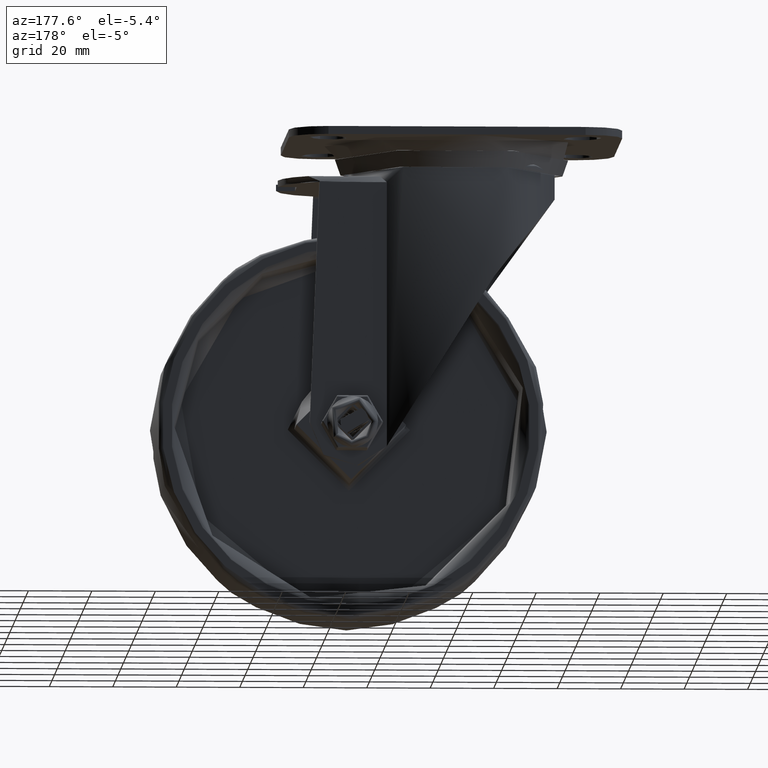
[diagram: clean part render]
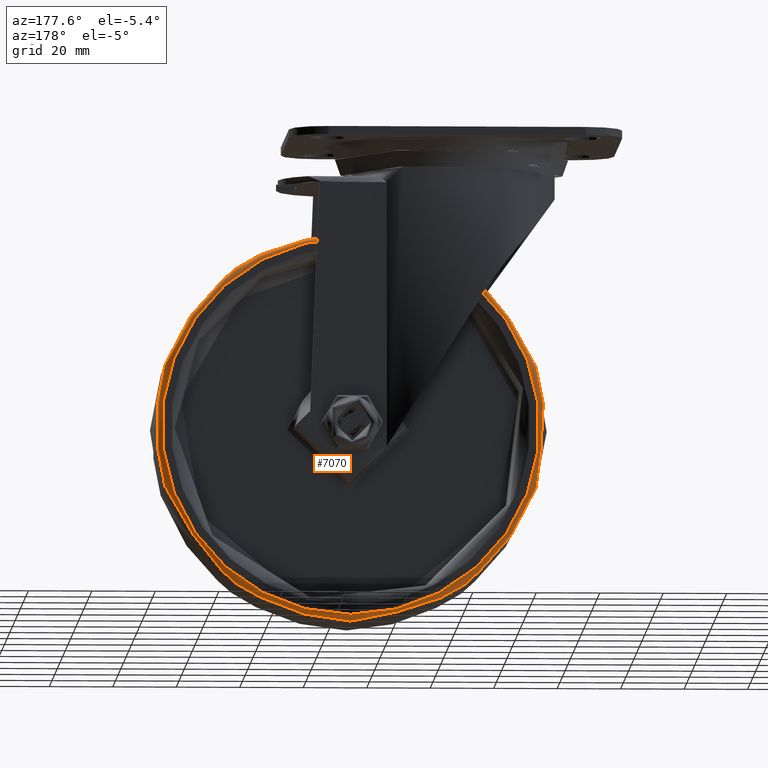
[diagram: same view with one face highlighted and labeled with its STEP entity id]
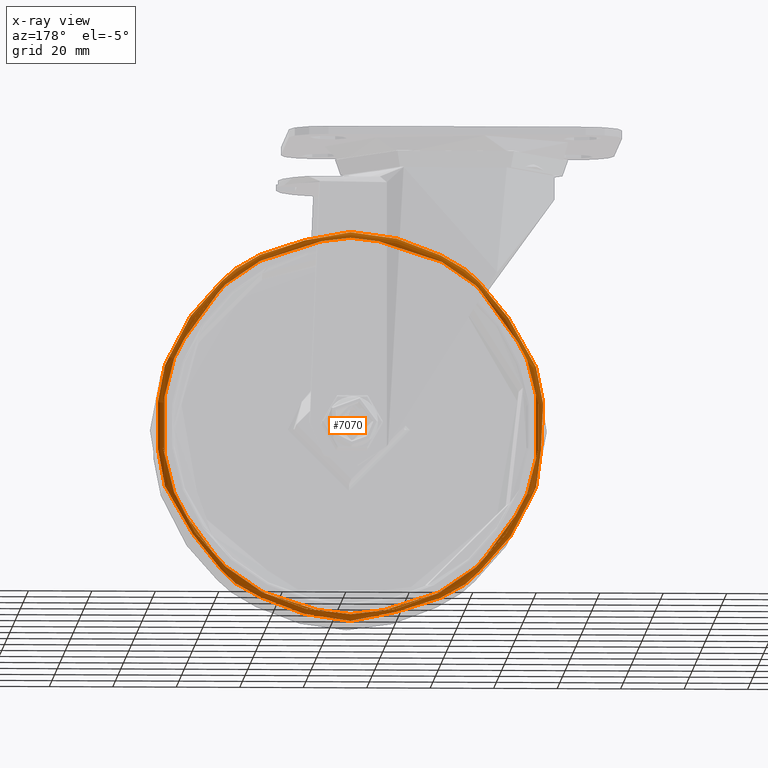
[diagram: x-ray of the same camera — body ghosted, the highlighted face saturated]
A machine part, auxiliary view. The second image highlights one B-rep face of the part: STEP entity #7070.
The next image is the same camera in x-ray: the body ghosted, the highlighted face saturated — about 0% of this face is hidden behind the body in this view.
In plain terms, the highlighted toroidal blend (fillet) surface has major radius 59.5042 mm and minor (blend) radius 2 mm.
Its self-contained STEP definition (entity closure, byte-faithful):
#710=TOROIDAL_SURFACE('',#7712,59.5041622587954,2.00000000000007);
#834=FACE_OUTER_BOUND('',#1281,.T.);
#1281=EDGE_LOOP('',(#5287,#5288,#5289,#5290));
#2787=CIRCLE('',#7713,59.5041622587954);
#2788=CIRCLE('',#7714,2.00000000000007);
#2789=CIRCLE('',#7715,61.4877191175578);
#3189=VERTEX_POINT('',#11877);
#3190=VERTEX_POINT('',#11879);
#3951=EDGE_CURVE('',#3189,#3189,#2787,.T.);
#3952=EDGE_CURVE('',#3189,#3190,#2788,.T.);
#3953=EDGE_CURVE('',#3190,#3190,#2789,.T.);
#5287=ORIENTED_EDGE('',*,*,#3951,.F.);
#5288=ORIENTED_EDGE('',*,*,#3952,.T.);
#5289=ORIENTED_EDGE('',*,*,#3953,.T.);
#5290=ORIENTED_EDGE('',*,*,#3952,.F.);
#7070=ADVANCED_FACE('',(#834),#710,.T.);
#7712=AXIS2_PLACEMENT_3D('',#11876,#8791,#8792);
#7713=AXIS2_PLACEMENT_3D('',#11878,#8793,#8794);
#7714=AXIS2_PLACEMENT_3D('',#11880,#8795,#8796);
#7715=AXIS2_PLACEMENT_3D('',#11881,#8797,#8798);
#8791=DIRECTION('center_axis',(-3.26943875618435E-15,1.,0.));
#8792=DIRECTION('ref_axis',(0.,0.,-1.));
#8793=DIRECTION('center_axis',(-3.26943875618435E-15,1.,0.));
#8794=DIRECTION('ref_axis',(-1.,-3.26943875618435E-15,0.));
#8795=DIRECTION('center_axis',(1.,3.26943875618435E-15,-1.22464679914735E-16));
#8796=DIRECTION('ref_axis',(1.22464679914735E-16,0.,1.));
#8797=DIRECTION('center_axis',(-3.26943875618435E-15,1.,0.));
#8798=DIRECTION('ref_axis',(-1.,-3.26943875618435E-15,0.));
#11876=CARTESIAN_POINT('Origin',(-5.06763007208572E-14,15.4999999999999,
0.));
#11877=CARTESIAN_POINT('',(-4.99280200486084E-14,17.5,59.5041622587954));
#11878=CARTESIAN_POINT('Origin',(-5.72151782332261E-14,17.5,0.));
#11879=CARTESIAN_POINT('',(-4.39829872638581E-14,15.7559339525283,61.4877191175578));
#11880=CARTESIAN_POINT('Origin',(-4.33891425362393E-14,15.4999999999999,
59.5041622587954));
#11881=CARTESIAN_POINT('Origin',(-5.15130611042769E-14,15.7559339525283,
0.));